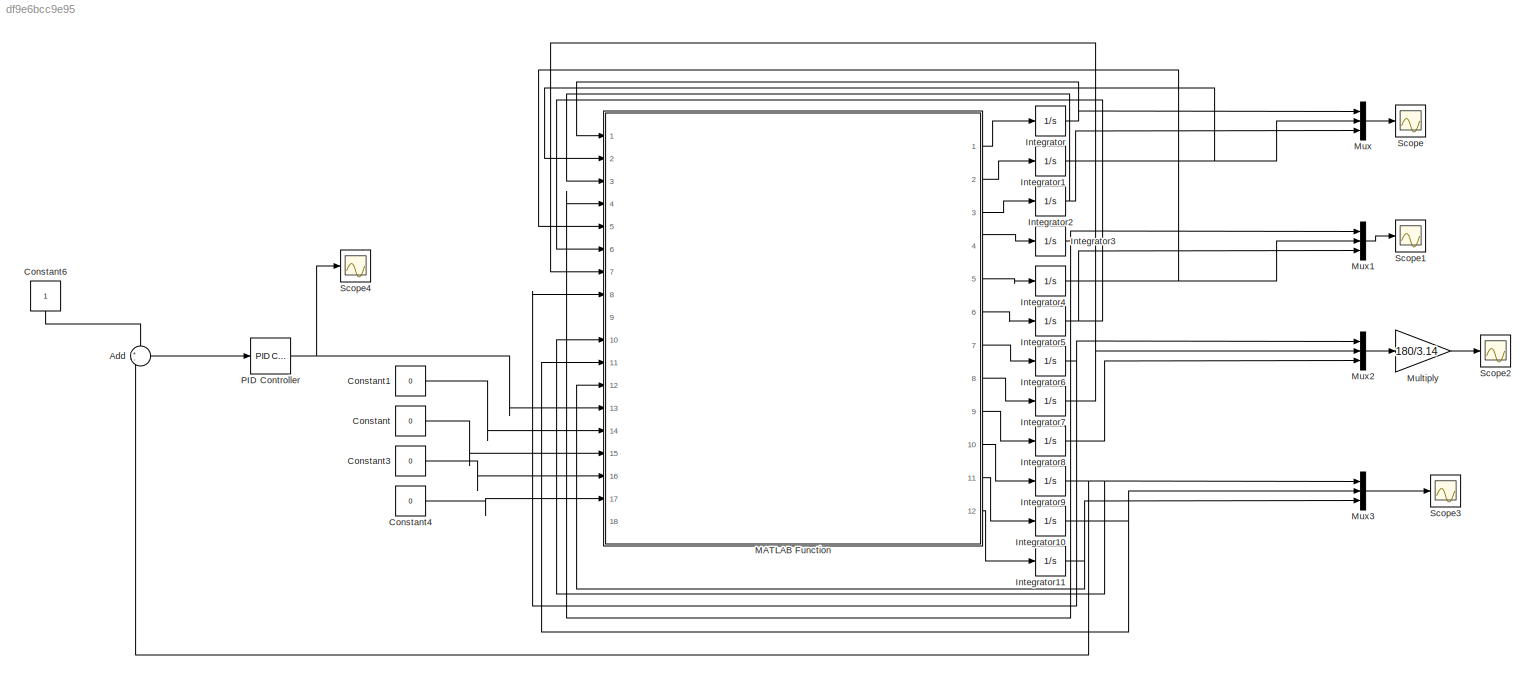
MODEL slx_df9e6bcc9e95
KIND model
CONFIG AbsTol = auto
CONFIG EnableMultiTasking = off
CONFIG FixedStep = auto
CONFIG MaxStep = auto
CONFIG MinStep = auto
CONFIG RelTol = 1e-3
CONFIG SampleTimeConstraint = Unconstrained
CONFIG Solver = VariableStepAuto
CONFIG SolverName = VariableStepAuto
CONFIG StartTime = 0.0
CONFIG StopTime = 100
BLOCK [Sum] Add
  IconShape = round
  InputSameDT = off
  Inputs = +-
  OutDataTypeStr = Inherit: Inherit via internal rule
  Ports = [2, 1]
  SaturateOnIntegerOverflow = off
BLOCK [Constant] Constant
  Value = 0
BLOCK [Constant] Constant1
  Value = 0
BLOCK [Constant] Constant3
  Value = 0
BLOCK [Constant] Constant4
  Value = 0
BLOCK [Constant] Constant6
BLOCK [Integrator] Integrator
  InitialCondition = 0.000
  Ports = [1, 1]
BLOCK [Integrator] Integrator1
  Ports = [1, 1]
BLOCK [Integrator] Integrator10
  Ports = [1, 1]
BLOCK [Integrator] Integrator11
  InitialCondition = 10
  Ports = [1, 1]
BLOCK [Integrator] Integrator2
  Ports = [1, 1]
BLOCK [Integrator] Integrator3
  Ports = [1, 1]
BLOCK [Integrator] Integrator4
  Ports = [1, 1]
BLOCK [Integrator] Integrator5
  Ports = [1, 1]
BLOCK [Integrator] Integrator6
  Ports = [1, 1]
BLOCK [Integrator] Integrator7
  Ports = [1, 1]
BLOCK [Integrator] Integrator8
  Ports = [1, 1]
BLOCK [Integrator] Integrator9
  Ports = [1, 1]
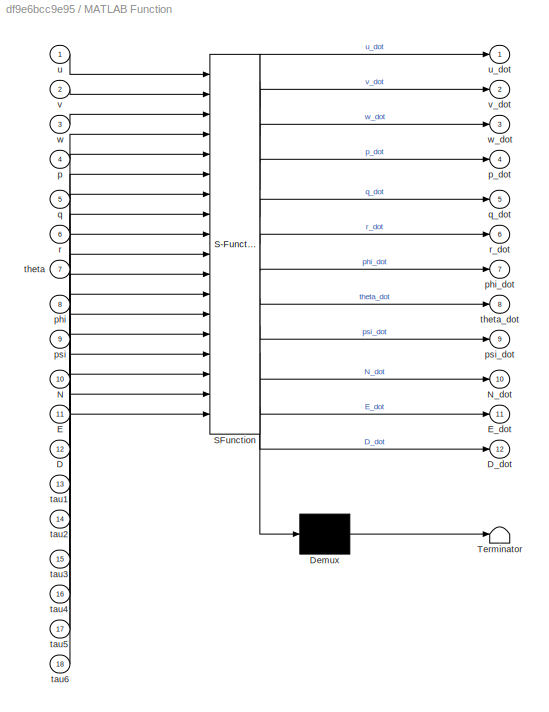
BLOCK [SubSystem] MATLAB Function
  ErrorFcn = Stateflow.Translate.translate
  PermitHierarchicalResolution = ExplicitOnly
  Ports = [18, 12]
  RequestExecContextInheritance = off
  SFBlockType = MATLAB Function
  TreatAsAtomicUnit = on
BLOCK [Demux] MATLAB Function/ Demux 
  Outputs = 1
  Ports = [1, 1]
BLOCK [S-Function] MATLAB Function/ SFunction 
  EnableBusSupport = on
  FunctionName = sf_sfun
  PortCounts = [18 13]
  Ports = [18, 13]
  SFcnIsStateOwnerBlock = off
  SFunctionDeploymentMode = off
  Tag = Stateflow S-Function 2
BLOCK [Terminator] MATLAB Function/ Terminator 
BLOCK [Inport] MATLAB Function/D
  IconDisplay = Port number
  Port = 12
BLOCK [Outport] MATLAB Function/D_dot
  IconDisplay = Port number
  Port = 12
BLOCK [Inport] MATLAB Function/E
  IconDisplay = Port number
  Port = 11
BLOCK [Outport] MATLAB Function/E_dot
  IconDisplay = Port number
  Port = 11
BLOCK [Inport] MATLAB Function/N
  IconDisplay = Port number
  Port = 10
BLOCK [Outport] MATLAB Function/N_dot
  IconDisplay = Port number
  Port = 10
BLOCK [Inport] MATLAB Function/p
  IconDisplay = Port number
  Port = 4
BLOCK [Outport] MATLAB Function/p_dot
  IconDisplay = Port number
  Port = 4
BLOCK [Inport] MATLAB Function/phi
  IconDisplay = Port number
  Port = 8
BLOCK [Outport] MATLAB Function/phi_dot
  IconDisplay = Port number
  Port = 7
BLOCK [Inport] MATLAB Function/psi
  IconDisplay = Port number
  Port = 9
BLOCK [Outport] MATLAB Function/psi_dot
  IconDisplay = Port number
  Port = 9
BLOCK [Inport] MATLAB Function/q
  IconDisplay = Port number
  Port = 5
BLOCK [Outport] MATLAB Function/q_dot
  IconDisplay = Port number
  Port = 5
BLOCK [Inport] MATLAB Function/r
  IconDisplay = Port number
  Port = 6
BLOCK [Outport] MATLAB Function/r_dot
  IconDisplay = Port number
  Port = 6
BLOCK [Inport] MATLAB Function/tau1
  IconDisplay = Port number
  Port = 13
BLOCK [Inport] MATLAB Function/tau2
  IconDisplay = Port number
  Port = 14
BLOCK [Inport] MATLAB Function/tau3
  IconDisplay = Port number
  Port = 15
BLOCK [Inport] MATLAB Function/tau4
  IconDisplay = Port number
  Port = 16
BLOCK [Inport] MATLAB Function/tau5
  IconDisplay = Port number
  Port = 17
BLOCK [Inport] MATLAB Function/tau6
  IconDisplay = Port number
  Port = 18
BLOCK [Inport] MATLAB Function/theta
  IconDisplay = Port number
  Port = 7
BLOCK [Outport] MATLAB Function/theta_dot
  IconDisplay = Port number
  Port = 8
BLOCK [Inport] MATLAB Function/u
  IconDisplay = Port number
BLOCK [Outport] MATLAB Function/u_dot
  IconDisplay = Port number
BLOCK [Inport] MATLAB Function/v
  IconDisplay = Port number
  Port = 2
BLOCK [Outport] MATLAB Function/v_dot
  IconDisplay = Port number
  Port = 2
BLOCK [Inport] MATLAB Function/w
  IconDisplay = Port number
  Port = 3
BLOCK [Outport] MATLAB Function/w_dot
  IconDisplay = Port number
  Port = 3
BLOCK [Gain] Multiply
  Gain = 180/3.14
  OutDataTypeStr = Inherit: Inherit via internal rule
  ParamDataTypeStr = Inherit: Inherit via internal rule
  SaturateOnIntegerOverflow = off
BLOCK [Mux] Mux
  DisplayOption = bar
  Inputs = 3
  Ports = [3, 1]
BLOCK [Mux] Mux1
  DisplayOption = bar
  Inputs = 3
  Ports = [3, 1]
BLOCK [Mux] Mux2
  DisplayOption = bar
  Inputs = 3
  Ports = [3, 1]
BLOCK [Mux] Mux3
  DisplayOption = bar
  Inputs = 3
  Ports = [3, 1]
BLOCK [Reference] PID Controller  REF=simulink/Continuous/PID Controller
  Ports = [1, 1]
  SourceBlock = simulink/Continuous/PID Controller
  SourceProductBaseCode = SL
  SourceProductName = Simulink
  SourceType = PID 1dof
BLOCK [Scope] Scope
  Floating = off
  NumInputPorts = 1
  Ports = [1]
  ScopeSpecificationString = Simulink.scopes.TimeScopeBlockCfg('CurrentConfiguration', extmgr.ConfigurationSet(extmgr.Configuration('Core','General UI',true,'FigureColor',[1 1 1]),extmgr.Configuration('Core','Source UI',true),extmgr.Configuration('Sources','WiredSimulink',true),extmgr.Configuration('Visuals','Time Domain',true,'SerializedDisplays',{struct('MinYLimReal','-0.05336','MaxYLimReal','0.00593','YLabelReal','','MinYL...<+1795ch>
BLOCK [Scope] Scope1
  Floating = off
  NumInputPorts = 1
  Ports = [1]
  ScopeSpecificationString = Simulink.scopes.TimeScopeBlockCfg('CurrentConfiguration', extmgr.ConfigurationSet(extmgr.Configuration('Core','General UI',true,'FigureColor',[1 1 1]),extmgr.Configuration('Core','Source UI',true),extmgr.Configuration('Sources','WiredSimulink',true,'DataLoggingVariableName','ScopeData1'),extmgr.Configuration('Visuals','Time Domain',true,'SerializedDisplays',{struct('MinYLimReal','-0.0000000000012'...<+1860ch>
BLOCK [Scope] Scope2
  Floating = off
  NumInputPorts = 1
  Ports = [1]
  ScopeSpecificationString = Simulink.scopes.TimeScopeBlockCfg('CurrentConfiguration', extmgr.ConfigurationSet(extmgr.Configuration('Core','General UI',true,'FigureColor',[1 1 1]),extmgr.Configuration('Core','Source UI',true),extmgr.Configuration('Sources','WiredSimulink',true,'DataLoggingVariableName','ScopeData2'),extmgr.Configuration('Visuals','Time Domain',true,'SerializedDisplays',{struct('MinYLimReal','-0.00045','MaxYLi...<+1785ch>
BLOCK [Scope] Scope3
  Floating = off
  NumInputPorts = 1
  Ports = [1]
  ScopeSpecificationString = Simulink.scopes.TimeScopeBlockCfg('CurrentConfiguration', extmgr.ConfigurationSet(extmgr.Configuration('Core','General UI',true,'FigureColor',[1 1 1]),extmgr.Configuration('Core','Source UI',true),extmgr.Configuration('Sources','WiredSimulink',true,'DataLoggingVariableName','ScopeData3'),extmgr.Configuration('Visuals','Time Domain',true,'SerializedDisplays',{struct('MinYLimReal','-1.25','MaxYLimRe...<+1808ch>
BLOCK [Scope] Scope4
  Floating = off
  NumInputPorts = 1
  Ports = [1]
  ScopeSpecificationString = Simulink.scopes.TimeScopeBlockCfg('CurrentConfiguration', extmgr.ConfigurationSet(extmgr.Configuration('Core','General UI',true),extmgr.Configuration('Core','Source UI',true),extmgr.Configuration('Sources','WiredSimulink',true,'DataLoggingVariableName','ScopeData1'),extmgr.Configuration('Visuals','Time Domain',true,'SerializedDisplays',{struct('MinYLimReal','-28.20215','MaxYLimReal','284.24468','Y...<+1402ch>
LINE Add:1 -> PID Controller:1
LINE Constant1:1 -> MATLAB Function:14
LINE Constant3:1 -> MATLAB Function:16
LINE Constant4:1 -> MATLAB Function:17
LINE Constant6:1 -> Add:1
LINE Constant:1 -> MATLAB Function:15
NET Integrator10:1 -> MATLAB Function:11, Mux3:2
NET Integrator11:1 -> MATLAB Function:12, Mux3:3
NET Integrator1:1 -> MATLAB Function:2, Mux:2
NET Integrator2:1 -> MATLAB Function:3, Mux:3
NET Integrator3:1 -> MATLAB Function:4, Mux1:1
NET Integrator4:1 -> MATLAB Function:5, Mux1:2
NET Integrator5:1 -> MATLAB Function:6, Mux1:3
NET Integrator6:1 -> MATLAB Function:8, Mux2:1
NET Integrator7:1 -> MATLAB Function:7, Mux2:2
LINE Integrator8:1 -> Mux2:3
NET Integrator9:1 -> Add:2, MATLAB Function:10, Mux3:1
NET Integrator:1 -> MATLAB Function:1, Mux:1
LINE MATLAB Function:1 -> Integrator:1
LINE MATLAB Function:10 -> Integrator9:1
LINE MATLAB Function:11 -> Integrator10:1
LINE MATLAB Function:12 -> Integrator11:1
LINE MATLAB Function:2 -> Integrator1:1
LINE MATLAB Function:3 -> Integrator2:1
LINE MATLAB Function:4 -> Integrator3:1
LINE MATLAB Function:5 -> Integrator4:1
LINE MATLAB Function:6 -> Integrator5:1
LINE MATLAB Function:7 -> Integrator6:1
LINE MATLAB Function:8 -> Integrator7:1
LINE MATLAB Function:9 -> Integrator8:1
LINE Multiply:1 -> Scope2:1
LINE Mux1:1 -> Scope1:1
LINE Mux2:1 -> Multiply:1
LINE Mux3:1 -> Scope3:1
LINE Mux:1 -> Scope:1
NET PID Controller:1 -> MATLAB Function:13, Scope4:1
note: NET lines group one-source signal fan-out (src -> all destinations, sorted); 1:1 wires keep LINE
CHART MATLAB Function states=1 transitions=1
  STATE_LABEL 'eML_blk_kernel()'
  STATE_LABEL "SCRIPT:\n\n\n\nfunction[u_dot, v_dot, w_dot, p_dot, q_dot, r_dot, phi_dot, theta_dot, psi_dot, N_dot, E_dot, D_dot] =  ...\n    BlueROV(u, v, w, p, q, r, theta, phi, psi, N, E, D, tau1,tau2,tau3,tau4,tau5,tau6)\n\ne1 = [1 0 0]';                    %Body frame unit vector along x\ne2 = [0 1 0]';                    %Body frame unit vector along y\ne3 = [0 0 1]';                    %Body frame unit vector alo...<+3608ch>"
